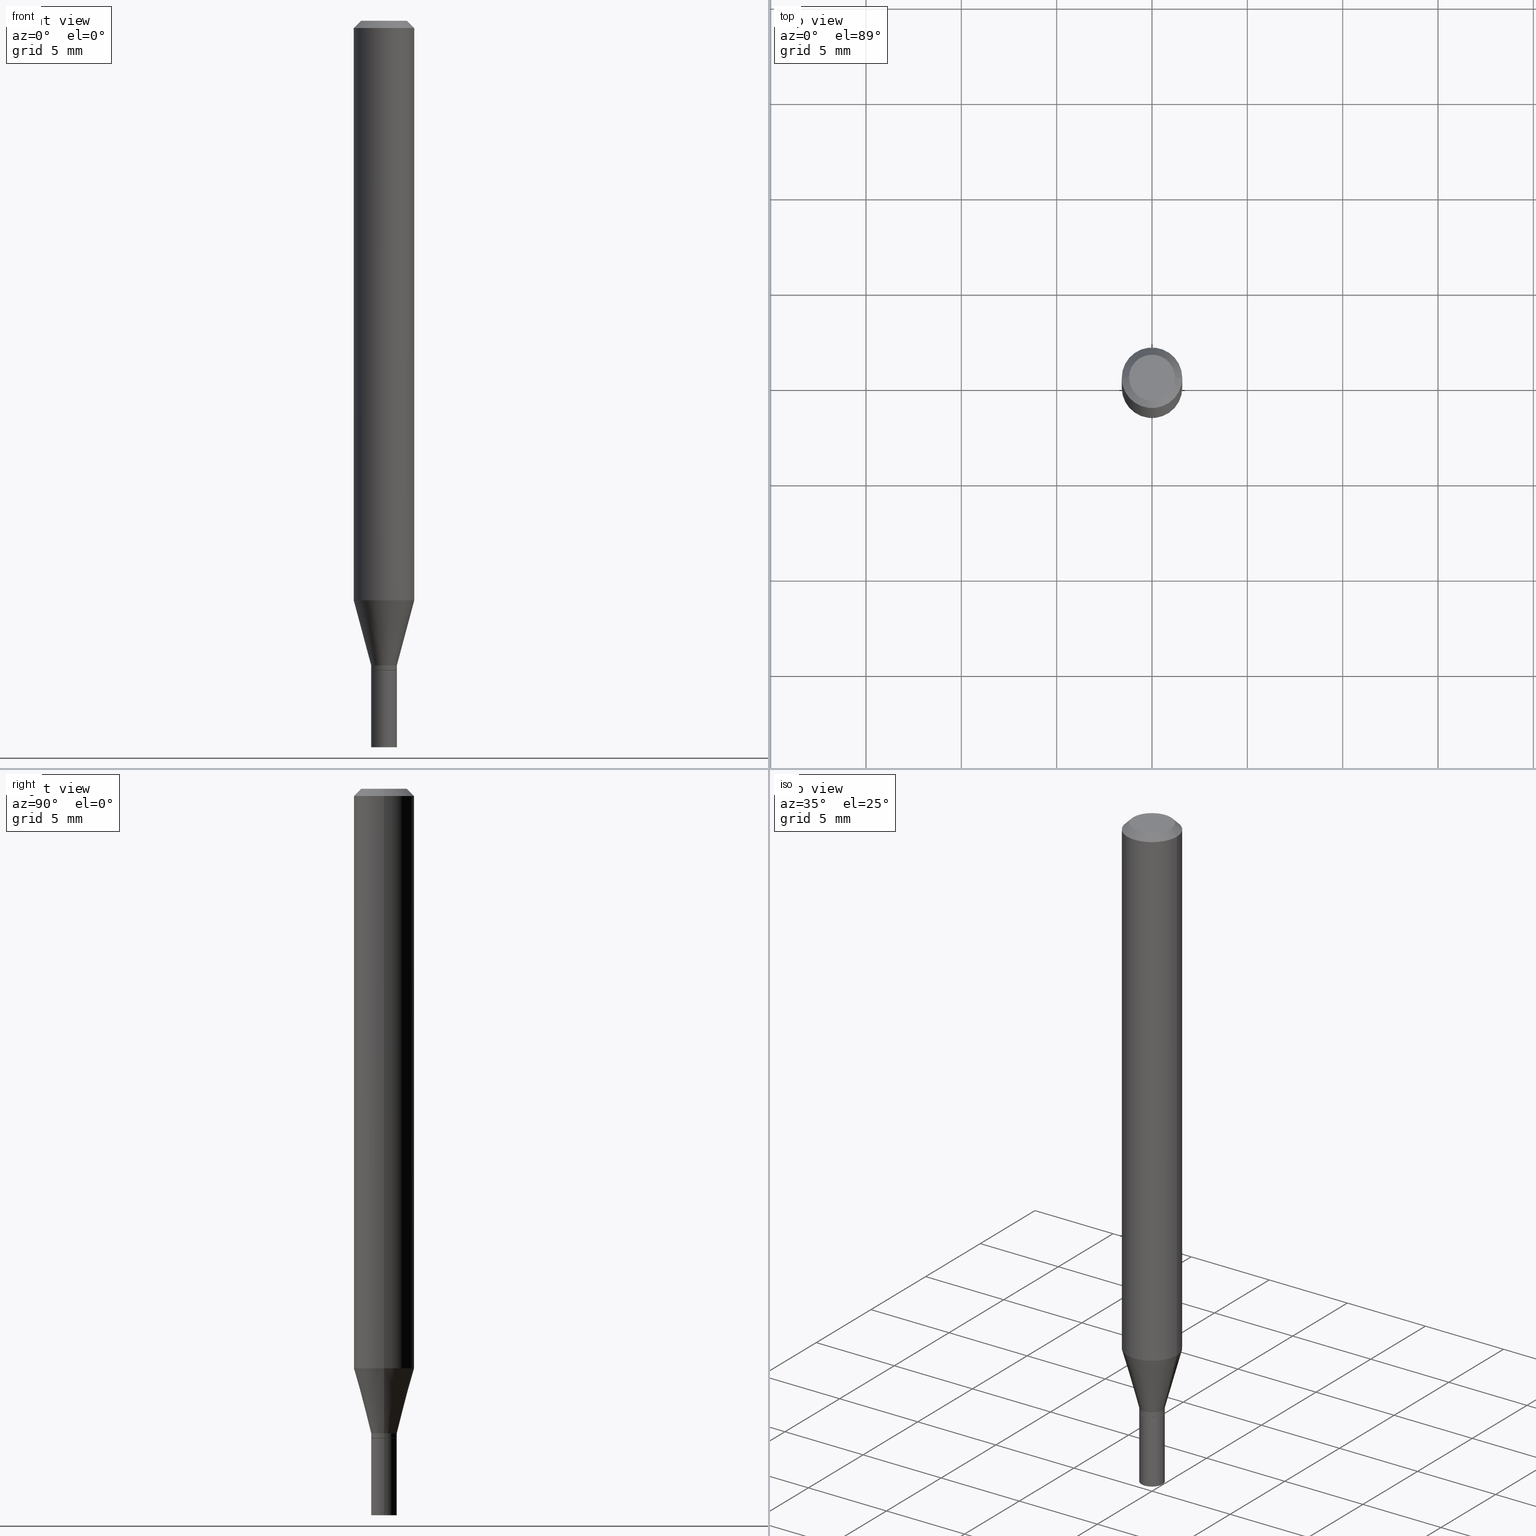
[diagram: canonical four-view strip — front | top / right | iso, engineering-drawing reading convention]
A machine part, canonical four-view strip (front | top / right | iso — engineering-drawing reading convention). The complete STEP part file that produces these views, byte-faithful:
ISO-10303-21;
HEADER;
FILE_DESCRIPTION (( 'STEP AP203' ),
    '1' );
FILE_NAME ('02482.STEP',
    '2024-03-18T20:52:09',
    ( '' ),
    ( '' ),
    'SwSTEP 2.0',
    'SolidWorks 2023',
    '' );
FILE_SCHEMA (( 'CONFIG_CONTROL_DESIGN' ));
ENDSEC;

DATA;
#1 = ORIENTED_EDGE ( 'NONE', *, *, #451, .F. ) ;
#2 = CARTESIAN_POINT ( 'NONE',  ( 0.02649999999999992639, -4.832210172958911994E-15, -1.331000000000000183 ) ) ;
#3 =( CONVERSION_BASED_UNIT ( 'INCH', #327 ) LENGTH_UNIT ( ) NAMED_UNIT ( #218 ) );
#4 = VECTOR ( 'NONE', #315, 39.37007874015748143 ) ;
#5 = FACE_OUTER_BOUND ( 'NONE', #53, .T. ) ;
#6 = SHAPE_DEFINITION_REPRESENTATION ( #211, #369 ) ;
#7 = DIRECTION ( 'NONE',  ( -1.000000000000000000, 6.982962677686265922E-15, -4.876176775795935793E-29 ) ) ;
#8 = CARTESIAN_POINT ( 'NONE',  ( 0.06250000000000000000, -4.614502942346933576E-15, -1.196646170927520458 ) ) ;
#9 = ORIENTED_EDGE ( 'NONE', *, *, #100, .T. ) ;
#10 = CLOSED_SHELL ( 'NONE', ( #397, #145, #131, #177, #400, #244, #336, #197, #83, #294, #113, #66 ) ) ;
#11 = AXIS2_PLACEMENT_3D ( 'NONE', #172, #387, #133 ) ;
#12 = CARTESIAN_POINT ( 'NONE',  ( -0.02599999999999999534, -4.497335364091034108E-15, -1.341000000000000192 ) ) ;
#13 = FACE_OUTER_BOUND ( 'NONE', #398, .T. ) ;
#14 = CARTESIAN_POINT ( 'NONE',  ( 3.668203209277704895E-29, -5.237222008264718177E-15, -1.500000000000000222 ) ) ;
#15 = ADVANCED_FACE ( 'NONE', ( #297 ), #84, .T. ) ;
#16 = ORIENTED_EDGE ( 'NONE', *, *, #114, .F. ) ;
#17 = CARTESIAN_POINT ( 'NONE',  ( 3.279373669094269136E-29, -4.682076475388659531E-15, -1.341000000000000192 ) ) ;
#18 = ORIENTED_EDGE ( 'NONE', *, *, #153, .T. ) ;
#19 = FACE_OUTER_BOUND ( 'NONE', #152, .T. ) ;
#20 = ORIENTED_EDGE ( 'NONE', *, *, #380, .F. ) ;
#21 = CARTESIAN_POINT ( 'NONE',  ( 0.04749999999999999362, -4.035134999187576158E-16, 1.370093274944008177E-16 ) ) ;
#22 = FACE_OUTER_BOUND ( 'NONE', #111, .T. ) ;
#23 = CIRCLE ( 'NONE', #11, 0.02649999999999992639 ) ;
#24 = EDGE_LOOP ( 'NONE', ( #155, #86, #170, #201 ) ) ;
#25 = LINE ( 'NONE', #127, #289 ) ;
#26 = DIRECTION ( 'NONE',  ( -2.445468806185136597E-29, 3.491481338843145583E-15, 1.000000000000000000 ) ) ;
#27 = CARTESIAN_POINT ( 'NONE',  ( -0.02649999999999992639, -4.096423201082640425E-15, -1.331000000000000183 ) ) ;
#28 = ORIENTED_EDGE ( 'NONE', *, *, #393, .T. ) ;
#29 = PERSON_AND_ORGANIZATION ( #412, #365 ) ;
#30 = CARTESIAN_POINT ( 'NONE',  ( 3.254918981032417030E-29, -4.647161662000227094E-15, -1.331000000000000183 ) ) ;
#31 = EDGE_CURVE ( 'NONE', #305, #434, #338, .T. ) ;
#32 = VERTEX_POINT ( 'NONE', #185 ) ;
#33 = DATE_TIME_ROLE ( 'creation_date' ) ;
#34 = CARTESIAN_POINT ( 'NONE',  ( -0.02649999999999999925, -4.771355416850261743E-15, -1.500000000000000222 ) ) ;
#35 = CIRCLE ( 'NONE', #87, 0.02649999999999999925 ) ;
#36 = APPROVAL ( #429, 'UNSPECIFIED' ) ;
#37 = AXIS2_PLACEMENT_3D ( 'NONE', #98, #159, #427 ) ;
#38 = ORIENTED_EDGE ( 'NONE', *, *, #266, .F. ) ;
#39 = PERSON_AND_ORGANIZATION_ROLE ( 'design_supplier' ) ;
#40 = CARTESIAN_POINT ( 'NONE',  ( 0.02649999999999992292, -4.865379245677923717E-15, -1.340500000000000469 ) ) ;
#41 = EDGE_CURVE ( 'NONE', #101, #434, #459, .T. ) ;
#42 = APPROVAL_ROLE ( '' ) ;
#43 = APPROVAL ( #251, 'UNSPECIFIED' ) ;
#44 = CC_DESIGN_APPROVAL ( #319, ( #279 ) ) ;
#45 = VERTEX_POINT ( 'NONE', #119 ) ;
#46 = ORIENTED_EDGE ( 'NONE', *, *, #129, .T. ) ;
#47 = CARTESIAN_POINT ( 'NONE',  ( -0.02649999999999999925, -4.771355416850261743E-15, -1.341000000000000192 ) ) ;
#48 = EDGE_LOOP ( 'NONE', ( #290, #189, #149, #389 ) ) ;
#49 = EDGE_CURVE ( 'NONE', #425, #32, #404, .T. ) ;
#50 = DIRECTION ( 'NONE',  ( 1.000000000000000000, -6.982962677686277755E-15, 0.000000000000000000 ) ) ;
#51 = EDGE_CURVE ( 'NONE', #408, #305, #63, .T. ) ;
#52 = DIRECTION ( 'NONE',  ( -2.445468806185136597E-29, 3.491481338843145583E-15, 1.000000000000000000 ) ) ;
#53 = EDGE_LOOP ( 'NONE', ( #132, #264, #339, #407 ) ) ;
#54 = DIRECTION ( 'NONE',  ( -2.445468806185136597E-29, 3.491481338843145583E-15, 1.000000000000000000 ) ) ;
#55 = EDGE_LOOP ( 'NONE', ( #447, #9, #333, #237 ) ) ;
#56 = VECTOR ( 'NONE', #77, 39.37007874015748143 ) ;
#57 = ORIENTED_EDGE ( 'NONE', *, *, #446, .T. ) ;
#58 = ORIENTED_EDGE ( 'NONE', *, *, #380, .T. ) ;
#59 = CARTESIAN_POINT ( 'NONE',  ( 3.278150934691176334E-29, -4.680330734719238028E-15, -1.340500000000000469 ) ) ;
#60 = DIRECTION ( 'NONE',  ( 1.000000000000000000, -6.982962677686266711E-15, 4.876176775795935793E-29 ) ) ;
#61 = DIRECTION ( 'NONE',  ( -2.445468806185136597E-29, 3.491481338843145583E-15, 1.000000000000000000 ) ) ;
#62 = FACE_OUTER_BOUND ( 'NONE', #48, .T. ) ;
#63 = CIRCLE ( 'NONE', #340, 0.02649999999999999925 ) ;
#64 = LINE ( 'NONE', #241, #4 ) ;
#65 = DIRECTION ( 'NONE',  ( -1.000000000000000000, 6.982962677686266711E-15, 0.000000000000000000 ) ) ;
#66 = ADVANCED_FACE ( 'NONE', ( #13 ), #222, .T. ) ;
#67 = CARTESIAN_POINT ( 'NONE',  ( 2.926360883044138788E-29, -4.178067774991542695E-15, -1.196646170927520458 ) ) ;
#68 = ORIENTED_EDGE ( 'NONE', *, *, #49, .F. ) ;
#69 = VERTEX_POINT ( 'NONE', #436 ) ;
#70 = CARTESIAN_POINT ( 'NONE',  ( 0.000000000000000000, 0.000000000000000000, 0.000000000000000000 ) ) ;
#71 = ORIENTED_EDGE ( 'NONE', *, *, #298, .T. ) ;
#72 = PERSON_AND_ORGANIZATION ( #412, #365 ) ;
#73 = CARTESIAN_POINT ( 'NONE',  ( 3.279373669094269136E-29, -4.682076475388659531E-15, -1.341000000000000192 ) ) ;
#74 = COORDINATED_UNIVERSAL_TIME_OFFSET ( 5, 0, .BEHIND. ) ;
#75 = CARTESIAN_POINT ( 'NONE',  ( 3.254918981032417030E-29, -4.647161662000227094E-15, -1.331000000000000183 ) ) ;
#76 = EDGE_LOOP ( 'NONE', ( #20, #385, #276, #370 ) ) ;
#77 = DIRECTION ( 'NONE',  ( -0.7071067811865656694, 7.493145998870420424E-15, 0.7071067811865294761 ) ) ;
#78 = VECTOR ( 'NONE', #184, 39.37007874015748143 ) ;
#79 = AXIS2_PLACEMENT_3D ( 'NONE', #239, #134, #209 ) ;
#80 = CARTESIAN_POINT ( 'NONE',  ( 0.000000000000000000, 0.000000000000000000, 0.000000000000000000 ) ) ;
#81 = EDGE_CURVE ( 'NONE', #136, #375, #320, .T. ) ;
#82 = APPLICATION_CONTEXT ( 'configuration controlled 3d designs of mechanical parts and assemblies' ) ;
#83 = ADVANCED_FACE ( 'NONE', ( #403 ), #88, .F. ) ;
#84 = CYLINDRICAL_SURFACE ( 'NONE', #288, 0.02649999999999999925 ) ;
#85 =( LENGTH_UNIT ( ) NAMED_UNIT ( * ) SI_UNIT ( $, .METRE. ) );
#86 = ORIENTED_EDGE ( 'NONE', *, *, #451, .T. ) ;
#87 = AXIS2_PLACEMENT_3D ( 'NONE', #14, #368, #268 ) ;
#88 = PLANE ( 'NONE',  #232 ) ;
#89 = AXIS2_PLACEMENT_3D ( 'NONE', #313, #309, #65 ) ;
#90 = AXIS2_PLACEMENT_3D ( 'NONE', #30, #391, #166 ) ;
#91 = CC_DESIGN_DATE_AND_TIME_ASSIGNMENT ( #322, #326, ( #282 ) ) ;
#92 = CARTESIAN_POINT ( 'NONE',  ( 0.02649999999999999925, -4.867124986347346010E-15, -1.341000000000000192 ) ) ;
#93 = ORIENTED_EDGE ( 'NONE', *, *, #417, .T. ) ;
#94 = CARTESIAN_POINT ( 'NONE',  ( 0.02599999999999999534, -4.863633505008502214E-15, -1.341000000000000192 ) ) ;
#95 = LINE ( 'NONE', #342, #348 ) ;
#96 = CIRCLE ( 'NONE', #383, 0.06250000000000000000 ) ;
#97 = DIRECTION ( 'NONE',  ( -2.445468806185136597E-29, 3.491481338843145583E-15, 1.000000000000000000 ) ) ;
#98 = CARTESIAN_POINT ( 'NONE',  ( 3.668203209277705088E-31, -5.237222008264718399E-17, -0.01499999999999999944 ) ) ;
#99 = PRODUCT_RELATED_PRODUCT_CATEGORY ( 'detail', '', ( #141 ) ) ;
#100 = EDGE_CURVE ( 'NONE', #305, #408, #35, .T. ) ;
#101 = VERTEX_POINT ( 'NONE', #92 ) ;
#102 = CLOSED_SHELL ( 'NONE', ( #15, #214, #316, #253 ) ) ;
#103 = DIRECTION ( 'NONE',  ( -2.445468806185136877E-29, 3.491481338843145188E-15, 1.000000000000000000 ) ) ;
#104 = CARTESIAN_POINT ( 'NONE',  ( 0.02649999999999992639, -1.850485109586855413E-16, 1.292186845585919279E-30 ) ) ;
#105 = ORIENTED_EDGE ( 'NONE', *, *, #352, .F. ) ;
#106 = CARTESIAN_POINT ( 'NONE',  ( 1.850485109587188213E-16, 0.02649999999999531550, -1.341000000000000192 ) ) ;
#107 = FACE_OUTER_BOUND ( 'NONE', #206, .T. ) ;
#108 = CALENDAR_DATE ( 2024, 18, 3 ) ;
#109 = CARTESIAN_POINT ( 'NONE',  ( 3.278150934691176334E-29, -4.680330734719238028E-15, -1.340500000000000469 ) ) ;
#110 = AXIS2_PLACEMENT_3D ( 'NONE', #262, #52, #186 ) ;
#111 = EDGE_LOOP ( 'NONE', ( #303, #18, #248, #299 ) ) ;
#112 = DIRECTION ( 'NONE',  ( -2.445468806185136597E-29, 3.491481338843145583E-15, 1.000000000000000000 ) ) ;
#113 = ADVANCED_FACE ( 'NONE', ( #374 ), #308, .T. ) ;
#114 = EDGE_CURVE ( 'NONE', #203, #69, #150, .T. ) ;
#115 =( GEOMETRIC_REPRESENTATION_CONTEXT ( 3 ) GLOBAL_UNCERTAINTY_ASSIGNED_CONTEXT ( ( #277 ) ) GLOBAL_UNIT_ASSIGNED_CONTEXT ( ( #3, #432, #273 ) ) REPRESENTATION_CONTEXT ( 'NONE', 'WORKASPACE' ) );
#116 = DIRECTION ( 'NONE',  ( -2.445468806185136597E-29, 3.491481338843145583E-15, 1.000000000000000000 ) ) ;
#117 = DIRECTION ( 'NONE',  ( -2.445468806185136597E-29, 3.491481338843145583E-15, 1.000000000000000000 ) ) ;
#118 = DIRECTION ( 'NONE',  ( 1.000000000000000000, -6.982962677686266711E-15, 4.876176775795935793E-29 ) ) ;
#119 = CARTESIAN_POINT ( 'NONE',  ( -0.04749999999999999362, 3.578768372314212971E-16, 1.370093274943958627E-16 ) ) ;
#120 = AXIS2_PLACEMENT_3D ( 'NONE', #138, #162, #360 ) ;
#121 = CARTESIAN_POINT ( 'NONE',  ( -0.02649999999999992639, -4.458867837023800771E-15, -1.331000000000000183 ) ) ;
#122 = ORIENTED_EDGE ( 'NONE', *, *, #41, .F. ) ;
#123 = PERSON_AND_ORGANIZATION ( #412, #365 ) ;
#124 = CARTESIAN_POINT ( 'NONE',  ( 0.000000000000000000, 0.000000000000000000, 0.000000000000000000 ) ) ;
#125 = AXIS2_PLACEMENT_3D ( 'NONE', #75, #287, #291 ) ;
#126 = LOCAL_TIME ( 16, 52, 9.000000000000000000, #204 ) ;
#127 = CARTESIAN_POINT ( 'NONE',  ( -0.06250000000000000000, 3.840629472727444916E-16, -0.01499999999999999944 ) ) ;
#128 = CARTESIAN_POINT ( 'NONE',  ( 0.000000000000000000, 0.000000000000000000, 0.000000000000000000 ) ) ;
#129 = EDGE_CURVE ( 'NONE', #396, #425, #146, .T. ) ;
#130 = DIRECTION ( 'NONE',  ( 2.445468806185136597E-29, -3.491481338843145583E-15, -1.000000000000000000 ) ) ;
#131 = ADVANCED_FACE ( 'NONE', ( #62 ), #226, .T. ) ;
#132 = ORIENTED_EDGE ( 'NONE', *, *, #228, .T. ) ;
#133 = DIRECTION ( 'NONE',  ( 1.000000000000000000, -6.982962677686260400E-15, 0.000000000000000000 ) ) ;
#134 = DIRECTION ( 'NONE',  ( -2.445468806185136597E-29, 3.491481338843145583E-15, 1.000000000000000000 ) ) ;
#135 = AXIS2_PLACEMENT_3D ( 'NONE', #419, #304, #154 ) ;
#136 = VERTEX_POINT ( 'NONE', #94 ) ;
#137 = CALENDAR_DATE ( 2024, 18, 3 ) ;
#138 = CARTESIAN_POINT ( 'NONE',  ( 0.000000000000000000, 0.000000000000000000, 0.000000000000000000 ) ) ;
#139 = ORIENTED_EDGE ( 'NONE', *, *, #465, .F. ) ;
#140 = DIRECTION ( 'NONE',  ( -1.000000000000000000, 6.982962677686265922E-15, -4.876176775795935793E-29 ) ) ;
#141 = PRODUCT ( '02482', '02482', '', ( #381 ) ) ;
#142 = CONICAL_SURFACE ( 'NONE', #328, 0.02599999999999999534, 0.7853981633974739252 ) ;
#143 = CONICAL_SURFACE ( 'NONE', #281, 0.06250000000000000000, 0.7853981633974438381 ) ;
#144 = CARTESIAN_POINT ( 'NONE',  ( 0.02649999999999999925, -5.422270519223404655E-15, -1.500000000000000222 ) ) ;
#145 = ADVANCED_FACE ( 'NONE', ( #345 ), #142, .T. ) ;
#146 = LINE ( 'NONE', #292, #208 ) ;
#147 = LINE ( 'NONE', #430, #444 ) ;
#148 = CARTESIAN_POINT ( 'NONE',  ( 0.06250000000000000000, -4.364351673553916694E-16, 3.047610484872459871E-30 ) ) ;
#149 = ORIENTED_EDGE ( 'NONE', *, *, #266, .T. ) ;
#150 = LINE ( 'NONE', #121, #443 ) ;
#151 = LOCAL_TIME ( 16, 52, 9.000000000000000000, #363 ) ;
#152 = EDGE_LOOP ( 'NONE', ( #93, #58, #38, #68 ) ) ;
#153 = EDGE_CURVE ( 'NONE', #192, #203, #95, .T. ) ;
#154 = DIRECTION ( 'NONE',  ( 1.000000000000000000, -6.982962677686265922E-15, 4.876176775795935793E-29 ) ) ;
#155 = ORIENTED_EDGE ( 'NONE', *, *, #81, .T. ) ;
#156 = APPLICATION_PROTOCOL_DEFINITION ( 'international standard', 'config_control_design', 1994, #82 ) ;
#157 = DIRECTION ( 'NONE',  ( 0.000000000000000000, 0.000000000000000000, 1.000000000000000000 ) ) ;
#158 = LOCAL_TIME ( 16, 52, 9.000000000000000000, #386 ) ;
#159 = DIRECTION ( 'NONE',  ( -2.445468806185136597E-29, 3.491481338843145583E-15, 1.000000000000000000 ) ) ;
#160 = FACE_OUTER_BOUND ( 'NONE', #353, .T. ) ;
#161 = APPLICATION_PROTOCOL_DEFINITION ( 'international standard', 'config_control_design', 1994, #356 ) ;
#162 = DIRECTION ( 'NONE',  ( -2.445468806185136597E-29, 3.491481338843145583E-15, 1.000000000000000000 ) ) ;
#163 = CC_DESIGN_PERSON_AND_ORGANIZATION_ASSIGNMENT ( #72, #390, ( #282 ) ) ;
#164 = EDGE_LOOP ( 'NONE', ( #256, #215 ) ) ;
#165 = PERSON_AND_ORGANIZATION_ROLE ( 'creator' ) ;
#166 = DIRECTION ( 'NONE',  ( 1.000000000000000000, -6.982962677686260400E-15, 0.000000000000000000 ) ) ;
#167 = CALENDAR_DATE ( 2024, 18, 3 ) ;
#168 = LINE ( 'NONE', #418, #271 ) ;
#169 = AXIS2_PLACEMENT_3D ( 'NONE', #236, #157, #195 ) ;
#170 = ORIENTED_EDGE ( 'NONE', *, *, #187, .F. ) ;
#171 = CALENDAR_DATE ( 2024, 18, 3 ) ;
#172 = CARTESIAN_POINT ( 'NONE',  ( 3.254918981032417030E-29, -4.647161662000227094E-15, -1.331000000000000183 ) ) ;
#173 = PERSON_AND_ORGANIZATION_ROLE ( 'creator' ) ;
#174 = PERSON_AND_ORGANIZATION ( #412, #365 ) ;
#175 = EDGE_CURVE ( 'NONE', #136, #324, #453, .T. ) ;
#176 = AXIS2_PLACEMENT_3D ( 'NONE', #106, #420, #140 ) ;
#177 = ADVANCED_FACE ( 'NONE', ( #19 ), #240, .T. ) ;
#178 = ORIENTED_EDGE ( 'NONE', *, *, #51, .T. ) ;
#179 = DIRECTION ( 'NONE',  ( 1.000000000000000000, -6.982962677686260400E-15, 0.000000000000000000 ) ) ;
#180 = DIRECTION ( 'NONE',  ( -2.445468806185136597E-29, 3.491481338843145583E-15, 1.000000000000000000 ) ) ;
#181 = DIRECTION ( 'NONE',  ( 1.000000000000000000, -6.982962677686261189E-15, 0.000000000000000000 ) ) ;
#182 = ORIENTED_EDGE ( 'NONE', *, *, #190, .T. ) ;
#183 = CIRCLE ( 'NONE', #301, 0.02649999999999992292 ) ;
#184 = DIRECTION ( 'NONE',  ( -2.445468806185136877E-29, 3.491481338843145188E-15, 1.000000000000000000 ) ) ;
#185 = CARTESIAN_POINT ( 'NONE',  ( 0.06250000000000000000, -4.888073874380388472E-16, -0.01499999999999999944 ) ) ;
#186 = DIRECTION ( 'NONE',  ( 1.000000000000000000, -6.982962677686258822E-15, 0.000000000000000000 ) ) ;
#187 = EDGE_CURVE ( 'NONE', #324, #192, #219, .T. ) ;
#188 = PERSON_AND_ORGANIZATION_ROLE ( 'design_owner' ) ;
#189 = ORIENTED_EDGE ( 'NONE', *, *, #352, .T. ) ;
#190 = EDGE_CURVE ( 'NONE', #45, #245, #25, .T. ) ;
#191 = VECTOR ( 'NONE', #388, 39.37007874015748143 ) ;
#192 = VERTEX_POINT ( 'NONE', #344 ) ;
#193 = VERTEX_POINT ( 'NONE', #21 ) ;
#194 = DIRECTION ( 'NONE',  ( -2.445468806185136597E-29, 3.491481338843145583E-15, 1.000000000000000000 ) ) ;
#195 = DIRECTION ( 'NONE',  ( 1.000000000000000000, 0.000000000000000000, 0.000000000000000000 ) ) ;
#196 = DIRECTION ( 'NONE',  ( 1.000000000000000000, -6.982962677686261189E-15, 0.000000000000000000 ) ) ;
#197 = ADVANCED_FACE ( 'NONE', ( #349 ), #143, .T. ) ;
#198 = CARTESIAN_POINT ( 'NONE',  ( -0.02599999999999999534, -4.494686136916922907E-15, -1.341000000000000192 ) ) ;
#199 = DIRECTION ( 'NONE',  ( -0.7071067811865443531, 2.468850131082223534E-15, -0.7071067811865506814 ) ) ;
#200 = DIRECTION ( 'NONE',  ( 1.000000000000000000, -6.982962677686266711E-15, 4.876176775795935793E-29 ) ) ;
#201 = ORIENTED_EDGE ( 'NONE', *, *, #175, .F. ) ;
#202 = DIRECTION ( 'NONE',  ( 1.000000000000000000, -6.982962677686270655E-15, 0.000000000000000000 ) ) ;
#203 = VERTEX_POINT ( 'NONE', #27 ) ;
#204 = COORDINATED_UNIVERSAL_TIME_OFFSET ( 5, 0, .BEHIND. ) ;
#205 = CYLINDRICAL_SURFACE ( 'NONE', #120, 0.02649999999999999925 ) ;
#206 = EDGE_LOOP ( 'NONE', ( #260, #139 ) ) ;
#207 = PERSON_AND_ORGANIZATION ( #412, #365 ) ;
#208 = VECTOR ( 'NONE', #415, 39.37007874015748854 ) ;
#209 = DIRECTION ( 'NONE',  ( 1.000000000000000000, -6.982962677686267499E-15, 4.852736867747366768E-29 ) ) ;
#210 = CIRCLE ( 'NONE', #452, 0.04749999999999999362 ) ;
#211 = PRODUCT_DEFINITION_SHAPE ( 'NONE', 'NONE',  #279 ) ;
#212 = CALENDAR_DATE ( 2024, 18, 3 ) ;
#213 = DIRECTION ( 'NONE',  ( -2.445468806185136597E-29, 3.491481338843145583E-15, 1.000000000000000000 ) ) ;
#214 = ADVANCED_FACE ( 'NONE', ( #160 ), #275, .F. ) ;
#215 = ORIENTED_EDGE ( 'NONE', *, *, #223, .T. ) ;
#216 = EDGE_CURVE ( 'NONE', #324, #396, #280, .T. ) ;
#217 = DIRECTION ( 'NONE',  ( 1.000000000000000000, -6.982962677686267499E-15, 4.852736867747366768E-29 ) ) ;
#218 = DIMENSIONAL_EXPONENTS ( 1.000000000000000000, 0.000000000000000000, 0.000000000000000000, 0.000000000000000000, 0.000000000000000000, 0.000000000000000000, 0.000000000000000000 ) ;
#219 = CIRCLE ( 'NONE', #461, 0.02649999999999992292 ) ;
#220 = CC_DESIGN_APPROVAL ( #43, ( #282 ) ) ;
#221 = DIRECTION ( 'NONE',  ( -0.2588190451025211836, 5.211531920934547886E-15, 0.9659258262890679791 ) ) ;
#222 = CYLINDRICAL_SURFACE ( 'NONE', #252, 0.02649999999999992639 ) ;
#223 = EDGE_CURVE ( 'NONE', #434, #101, #259, .T. ) ;
#224 = DIRECTION ( 'NONE',  ( -2.445468806185136597E-29, 3.491481338843145583E-15, 1.000000000000000000 ) ) ;
#225 = DATE_AND_TIME ( #212, #311 ) ;
#226 = CONICAL_SURFACE ( 'NONE', #89, 0.06250000000000000000, 0.7853981633974438381 ) ;
#227 = CIRCLE ( 'NONE', #379, 0.02599999999999999534 ) ;
#228 = EDGE_CURVE ( 'NONE', #396, #203, #23, .T. ) ;
#229 = DIRECTION ( 'NONE',  ( 1.000000000000000000, -6.982962677686258822E-15, 0.000000000000000000 ) ) ;
#230 = ORIENTED_EDGE ( 'NONE', *, *, #153, .F. ) ;
#231 = CC_DESIGN_DATE_AND_TIME_ASSIGNMENT ( #249, #33, ( #279 ) ) ;
#232 = AXIS2_PLACEMENT_3D ( 'NONE', #332, #337, #7 ) ;
#233 = DIRECTION ( 'NONE',  ( 0.7071067811865656694, -2.468850131082446387E-15, 0.7071067811865294761 ) ) ;
#234 = AXIS2_PLACEMENT_3D ( 'NONE', #312, #323, #466 ) ;
#235 = APPROVAL_PERSON_ORGANIZATION ( #207, #43, #395 ) ;
#236 = CARTESIAN_POINT ( 'NONE',  ( 0.000000000000000000, 0.000000000000000000, 0.000000000000000000 ) ) ;
#237 = ORIENTED_EDGE ( 'NONE', *, *, #223, .F. ) ;
#238 = DIRECTION ( 'NONE',  ( 1.000000000000000000, -6.982962677686258822E-15, 0.000000000000000000 ) ) ;
#239 = CARTESIAN_POINT ( 'NONE',  ( -3.350520365439544480E-45, 4.783655101941405986E-31, 1.370093274943982539E-16 ) ) ;
#240 = CYLINDRICAL_SURFACE ( 'NONE', #321, 0.06250000000000000000 ) ;
#241 = CARTESIAN_POINT ( 'NONE',  ( 0.06250000000000000000, -4.811533449433679005E-16, -0.01499999999999999944 ) ) ;
#242 = CARTESIAN_POINT ( 'NONE',  ( 0.02599999999999999534, -4.863633505008502214E-15, -1.341000000000000192 ) ) ;
#243 = DIRECTION ( 'NONE',  ( 1.000000000000000000, -6.982962677686265922E-15, 4.876176775795935232E-29 ) ) ;
#244 = ADVANCED_FACE ( 'NONE', ( #278 ), #405, .T. ) ;
#245 = VERTEX_POINT ( 'NONE', #351 ) ;
#246 = SECURITY_CLASSIFICATION_LEVEL ( 'unclassified' ) ;
#247 = DIRECTION ( 'NONE',  ( -2.445468806185136597E-29, 3.491481338843145583E-15, 1.000000000000000000 ) ) ;
#248 = ORIENTED_EDGE ( 'NONE', *, *, #228, .F. ) ;
#249 = DATE_AND_TIME ( #167, #151 ) ;
#250 = FACE_OUTER_BOUND ( 'NONE', #55, .T. ) ;
#251 = APPROVAL_STATUS ( 'not_yet_approved' ) ;
#252 = AXIS2_PLACEMENT_3D ( 'NONE', #80, #180, #335 ) ;
#253 = ADVANCED_FACE ( 'NONE', ( #283 ), #318, .F. ) ;
#254 = CARTESIAN_POINT ( 'NONE',  ( -3.350520365439544480E-45, 4.783655101941405986E-31, 1.370093274943982539E-16 ) ) ;
#255 = CC_DESIGN_PERSON_AND_ORGANIZATION_ASSIGNMENT ( #174, #173, ( #279 ) ) ;
#256 = ORIENTED_EDGE ( 'NONE', *, *, #41, .T. ) ;
#257 = DIRECTION ( 'NONE',  ( -2.445468806185136877E-29, 3.491481338843145188E-15, 1.000000000000000000 ) ) ;
#258 = AXIS2_PLACEMENT_3D ( 'NONE', #441, #302, #50 ) ;
#259 = CIRCLE ( 'NONE', #359, 0.02649999999999999925 ) ;
#260 = ORIENTED_EDGE ( 'NONE', *, *, #81, .F. ) ;
#261 = DIRECTION ( 'NONE',  ( 1.000000000000000000, -6.982962677686258822E-15, 0.000000000000000000 ) ) ;
#262 = CARTESIAN_POINT ( 'NONE',  ( 3.279373669094269136E-29, -4.682076475388659531E-15, -1.341000000000000192 ) ) ;
#263 = MANIFOLD_SOLID_BREP ( 'Body-Move/Copy2[1]', #102 ) ;
#264 = ORIENTED_EDGE ( 'NONE', *, *, #114, .T. ) ;
#265 = MANIFOLD_SOLID_BREP ( 'Body-Move/Copy2[2]', #10 ) ;
#266 = EDGE_CURVE ( 'NONE', #32, #245, #334, .T. ) ;
#267 = CIRCLE ( 'NONE', #341, 0.06250000000000000000 ) ;
#268 = DIRECTION ( 'NONE',  ( 1.000000000000000000, -6.982962677686277755E-15, 0.000000000000000000 ) ) ;
#269 = EDGE_CURVE ( 'NONE', #69, #425, #267, .T. ) ;
#270 = ORIENTED_EDGE ( 'NONE', *, *, #465, .T. ) ;
#271 = VECTOR ( 'NONE', #103, 39.37007874015748143 ) ;
#272 = APPROVAL_PERSON_ORGANIZATION ( #426, #36, #42 ) ;
#273 =( NAMED_UNIT ( * ) SI_UNIT ( $, .STERADIAN. ) SOLID_ANGLE_UNIT ( ) );
#274 = DIRECTION ( 'NONE',  ( -2.445468806185136597E-29, 3.491481338843145583E-15, 1.000000000000000000 ) ) ;
#275 = PLANE ( 'NONE',  #135 ) ;
#276 = ORIENTED_EDGE ( 'NONE', *, *, #49, .T. ) ;
#277 = UNCERTAINTY_MEASURE_WITH_UNIT (LENGTH_MEASURE( 1.000000000000000082E-05 ), #3, 'distance_accuracy_value', 'NONE');
#278 = FACE_OUTER_BOUND ( 'NONE', #450, .T. ) ;
#279 = PRODUCT_DEFINITION ( 'UNKNOWN', '', #421, #423 ) ;
#280 = LINE ( 'NONE', #104, #191 ) ;
#281 = AXIS2_PLACEMENT_3D ( 'NONE', #416, #130, #307 ) ;
#282 = SECURITY_CLASSIFICATION ( '', '', #246 ) ;
#283 = FACE_OUTER_BOUND ( 'NONE', #164, .T. ) ;
#284 = ORIENTED_EDGE ( 'NONE', *, *, #269, .F. ) ;
#285 = APPROVAL_DATE_TIME ( #354, #36 ) ;
#286 = DATE_AND_TIME ( #137, #158 ) ;
#287 = DIRECTION ( 'NONE',  ( -2.445468806185136597E-29, 3.491481338843145583E-15, 1.000000000000000000 ) ) ;
#288 = AXIS2_PLACEMENT_3D ( 'NONE', #442, #224, #118 ) ;
#289 = VECTOR ( 'NONE', #199, 39.37007874015748143 ) ;
#290 = ORIENTED_EDGE ( 'NONE', *, *, #298, .F. ) ;
#291 = DIRECTION ( 'NONE',  ( 1.000000000000000000, -6.982962677686260400E-15, 0.000000000000000000 ) ) ;
#292 = CARTESIAN_POINT ( 'NONE',  ( 0.02649999999999992639, -4.832210172958911994E-15, -1.331000000000000183 ) ) ;
#293 = LINE ( 'NONE', #12, #56 ) ;
#294 = ADVANCED_FACE ( 'NONE', ( #107 ), #458, .F. ) ;
#295 = AXIS2_PLACEMENT_3D ( 'NONE', #73, #346, #355 ) ;
#296 = DIRECTION ( 'NONE',  ( -2.445468806185136877E-29, 3.491481338843145188E-15, 1.000000000000000000 ) ) ;
#297 = FACE_OUTER_BOUND ( 'NONE', #330, .T. ) ;
#298 = EDGE_CURVE ( 'NONE', #193, #45, #310, .T. ) ;
#299 = ORIENTED_EDGE ( 'NONE', *, *, #216, .F. ) ;
#300 = CC_DESIGN_PERSON_AND_ORGANIZATION_ASSIGNMENT ( #29, #165, ( #421 ) ) ;
#301 = AXIS2_PLACEMENT_3D ( 'NONE', #109, #399, #181 ) ;
#302 = DIRECTION ( 'NONE',  ( -2.445468806185136597E-29, 3.491481338843145583E-15, 1.000000000000000000 ) ) ;
#303 = ORIENTED_EDGE ( 'NONE', *, *, #187, .T. ) ;
#304 = DIRECTION ( 'NONE',  ( -2.438088387897960049E-29, 3.491481338843145188E-15, 1.000000000000000000 ) ) ;
#305 = VERTEX_POINT ( 'NONE', #34 ) ;
#306 = EDGE_LOOP ( 'NONE', ( #1, #270, #401, #409 ) ) ;
#307 = DIRECTION ( 'NONE',  ( -1.000000000000000000, 6.982962677686266711E-15, 0.000000000000000000 ) ) ;
#308 = CONICAL_SURFACE ( 'NONE', #110, 0.02599999999999999534, 0.7853981633974739252 ) ;
#309 = DIRECTION ( 'NONE',  ( 2.445468806185136597E-29, -3.491481338843145583E-15, -1.000000000000000000 ) ) ;
#310 = CIRCLE ( 'NONE', #79, 0.04749999999999999362 ) ;
#311 = LOCAL_TIME ( 16, 52, 9.000000000000000000, #74 ) ;
#312 = CARTESIAN_POINT ( 'NONE',  ( 3.668203209277705088E-31, -5.237222008264718399E-17, -0.01499999999999999944 ) ) ;
#313 = CARTESIAN_POINT ( 'NONE',  ( 3.668203209277705088E-31, -5.237222008264718399E-17, -0.01499999999999999944 ) ) ;
#314 = PERSON_AND_ORGANIZATION ( #412, #365 ) ;
#315 = DIRECTION ( 'NONE',  ( 0.7071067811865443531, -7.319954787623245001E-15, -0.7071067811865506814 ) ) ;
#316 = ADVANCED_FACE ( 'NONE', ( #250 ), #205, .T. ) ;
#317 = PERSON_AND_ORGANIZATION ( #412, #365 ) ;
#318 = PLANE ( 'NONE',  #176 ) ;
#319 = APPROVAL ( #455, 'UNSPECIFIED' ) ;
#320 = CIRCLE ( 'NONE', #378, 0.02599999999999999534 ) ;
#321 = AXIS2_PLACEMENT_3D ( 'NONE', #124, #97, #60 ) ;
#322 = DATE_AND_TIME ( #171, #384 ) ;
#323 = DIRECTION ( 'NONE',  ( -2.445468806185136597E-29, 3.491481338843145583E-15, 1.000000000000000000 ) ) ;
#324 = VERTEX_POINT ( 'NONE', #40 ) ;
#325 = CARTESIAN_POINT ( 'NONE',  ( 3.279373669094269136E-29, -4.682076475388659531E-15, -1.341000000000000192 ) ) ;
#326 = DATE_TIME_ROLE ( 'classification_date' ) ;
#327 = LENGTH_MEASURE_WITH_UNIT ( LENGTH_MEASURE( 0.02539999999999999897 ), #85 );
#328 = AXIS2_PLACEMENT_3D ( 'NONE', #376, #54, #238 ) ;
#329 = APPROVAL_DATE_TIME ( #286, #319 ) ;
#330 = EDGE_LOOP ( 'NONE', ( #178, #357, #122, #392 ) ) ;
#331 = DIRECTION ( 'NONE',  ( 1.000000000000000000, -6.982962677686270655E-15, 0.000000000000000000 ) ) ;
#332 = CARTESIAN_POINT ( 'NONE',  ( 3.316907271900976096E-16, 0.04749999999999999362, -9.734069984785028182E-17 ) ) ;
#333 = ORIENTED_EDGE ( 'NONE', *, *, #433, .T. ) ;
#334 = CIRCLE ( 'NONE', #37, 0.06250000000000000000 ) ;
#335 = DIRECTION ( 'NONE',  ( 1.000000000000000000, -6.982962677686265922E-15, 4.876176775795935232E-29 ) ) ;
#336 = ADVANCED_FACE ( 'NONE', ( #382 ), #424, .T. ) ;
#337 = DIRECTION ( 'NONE',  ( 2.438088387897960049E-29, -3.491481338843145188E-15, -1.000000000000000000 ) ) ;
#338 = LINE ( 'NONE', #373, #78 ) ;
#339 = ORIENTED_EDGE ( 'NONE', *, *, #417, .F. ) ;
#340 = AXIS2_PLACEMENT_3D ( 'NONE', #440, #448, #367 ) ;
#341 = AXIS2_PLACEMENT_3D ( 'NONE', #67, #26, #202 ) ;
#342 = CARTESIAN_POINT ( 'NONE',  ( -0.02649999999999992639, 1.882938249764260262E-16, -1.303517798917546247E-30 ) ) ;
#343 = EDGE_LOOP ( 'NONE', ( #428, #71 ) ) ;
#344 = CARTESIAN_POINT ( 'NONE',  ( -0.02649999999999992292, -4.492036909742812495E-15, -1.340500000000000469 ) ) ;
#345 = FACE_OUTER_BOUND ( 'NONE', #24, .T. ) ;
#346 = DIRECTION ( 'NONE',  ( -2.438088387897960049E-29, 3.491481338843145188E-15, 1.000000000000000000 ) ) ;
#347 = ORIENTED_EDGE ( 'NONE', *, *, #51, .F. ) ;
#348 = VECTOR ( 'NONE', #457, 39.37007874015748143 ) ;
#349 = FACE_OUTER_BOUND ( 'NONE', #463, .T. ) ;
#350 = CIRCLE ( 'NONE', #234, 0.06250000000000000000 ) ;
#351 = CARTESIAN_POINT ( 'NONE',  ( -0.06250000000000000000, -1.671130787687032468E-15, -0.01499999999999999944 ) ) ;
#352 = EDGE_CURVE ( 'NONE', #193, #32, #64, .T. ) ;
#353 = EDGE_LOOP ( 'NONE', ( #347, #422 ) ) ;
#354 = DATE_AND_TIME ( #108, #126 ) ;
#355 = DIRECTION ( 'NONE',  ( 1.000000000000000000, -6.982962677686265922E-15, 4.876176775795935793E-29 ) ) ;
#356 = APPLICATION_CONTEXT ( 'configuration controlled 3d designs of mechanical parts and assemblies' ) ;
#357 = ORIENTED_EDGE ( 'NONE', *, *, #31, .T. ) ;
#358 = COORDINATED_UNIVERSAL_TIME_OFFSET ( 5, 0, .BEHIND. ) ;
#359 = AXIS2_PLACEMENT_3D ( 'NONE', #325, #61, #456 ) ;
#360 = DIRECTION ( 'NONE',  ( 1.000000000000000000, -6.982962677686266711E-15, 4.876176775795935793E-29 ) ) ;
#361 = DIRECTION ( 'NONE',  ( -2.445468806185136597E-29, 3.491481338843145583E-15, 1.000000000000000000 ) ) ;
#362 = ORIENTED_EDGE ( 'NONE', *, *, #410, .T. ) ;
#363 = COORDINATED_UNIVERSAL_TIME_OFFSET ( 5, 0, .BEHIND. ) ;
#364 = CC_DESIGN_PERSON_AND_ORGANIZATION_ASSIGNMENT ( #123, #188, ( #141 ) ) ;
#365 = ORGANIZATION ( 'UNSPECIFIED', 'UNSPECIFIED', '' ) ;
#366 = CARTESIAN_POINT ( 'NONE',  ( 3.279373669094269136E-29, -4.682076475388659531E-15, -1.341000000000000192 ) ) ;
#367 = DIRECTION ( 'NONE',  ( 1.000000000000000000, -6.982962677686277755E-15, 0.000000000000000000 ) ) ;
#368 = DIRECTION ( 'NONE',  ( -2.445468806185136597E-29, 3.491481338843145583E-15, 1.000000000000000000 ) ) ;
#369 = ADVANCED_BREP_SHAPE_REPRESENTATION ( '02482', ( #263, #265, #169 ), #115 ) ;
#370 = ORIENTED_EDGE ( 'NONE', *, *, #393, .F. ) ;
#371 = APPROVAL_DATE_TIME ( #225, #43 ) ;
#372 = APPROVAL_PERSON_ORGANIZATION ( #314, #319, #464 ) ;
#373 = CARTESIAN_POINT ( 'NONE',  ( -0.02649999999999999925, 1.882938249764265439E-16, -1.303517798917549926E-30 ) ) ;
#374 = FACE_OUTER_BOUND ( 'NONE', #306, .T. ) ;
#375 = VERTEX_POINT ( 'NONE', #198 ) ;
#376 = CARTESIAN_POINT ( 'NONE',  ( 3.279373669094269136E-29, -4.682076475388659531E-15, -1.341000000000000192 ) ) ;
#377 = ORIENTED_EDGE ( 'NONE', *, *, #216, .T. ) ;
#378 = AXIS2_PLACEMENT_3D ( 'NONE', #17, #117, #229 ) ;
#379 = AXIS2_PLACEMENT_3D ( 'NONE', #366, #116, #261 ) ;
#380 = EDGE_CURVE ( 'NONE', #69, #245, #168, .T. ) ;
#381 = MECHANICAL_CONTEXT ( 'NONE', #82, 'mechanical' ) ;
#382 = FACE_OUTER_BOUND ( 'NONE', #76, .T. ) ;
#383 = AXIS2_PLACEMENT_3D ( 'NONE', #439, #112, #331 ) ;
#384 = LOCAL_TIME ( 16, 52, 9.000000000000000000, #358 ) ;
#385 = ORIENTED_EDGE ( 'NONE', *, *, #269, .T. ) ;
#386 = COORDINATED_UNIVERSAL_TIME_OFFSET ( 5, 0, .BEHIND. ) ;
#387 = DIRECTION ( 'NONE',  ( -2.445468806185136597E-29, 3.491481338843145583E-15, 1.000000000000000000 ) ) ;
#388 = DIRECTION ( 'NONE',  ( -2.445468806185136877E-29, 3.491481338843145188E-15, 1.000000000000000000 ) ) ;
#389 = ORIENTED_EDGE ( 'NONE', *, *, #190, .F. ) ;
#390 = PERSON_AND_ORGANIZATION_ROLE ( 'classification_officer' ) ;
#391 = DIRECTION ( 'NONE',  ( -2.445468806185136597E-29, 3.491481338843145583E-15, 1.000000000000000000 ) ) ;
#392 = ORIENTED_EDGE ( 'NONE', *, *, #433, .F. ) ;
#393 = EDGE_CURVE ( 'NONE', #245, #32, #350, .T. ) ;
#394 = CIRCLE ( 'NONE', #431, 0.02649999999999992639 ) ;
#395 = APPROVAL_ROLE ( '' ) ;
#396 = VERTEX_POINT ( 'NONE', #2 ) ;
#397 = ADVANCED_FACE ( 'NONE', ( #22 ), #454, .T. ) ;
#398 = EDGE_LOOP ( 'NONE', ( #230, #57, #377, #411 ) ) ;
#399 = DIRECTION ( 'NONE',  ( -2.445468806185136597E-29, 3.491481338843145583E-15, 1.000000000000000000 ) ) ;
#400 = ADVANCED_FACE ( 'NONE', ( #5 ), #414, .T. ) ;
#401 = ORIENTED_EDGE ( 'NONE', *, *, #175, .T. ) ;
#402 = VECTOR ( 'NONE', #233, 39.37007874015748143 ) ;
#403 = FACE_OUTER_BOUND ( 'NONE', #343, .T. ) ;
#404 = LINE ( 'NONE', #148, #437 ) ;
#405 = CONICAL_SURFACE ( 'NONE', #90, 0.02649999999999992639, 0.2617993877991499074 ) ;
#406 = AXIS2_PLACEMENT_3D ( 'NONE', #128, #274, #243 ) ;
#407 = ORIENTED_EDGE ( 'NONE', *, *, #129, .F. ) ;
#408 = VERTEX_POINT ( 'NONE', #144 ) ;
#409 = ORIENTED_EDGE ( 'NONE', *, *, #446, .F. ) ;
#410 = EDGE_CURVE ( 'NONE', #203, #396, #394, .T. ) ;
#411 = ORIENTED_EDGE ( 'NONE', *, *, #410, .F. ) ;
#412 = PERSON ( 'UNSPECIFIED', 'UNSPECIFIED', 'UNSPECIFIED', ('UNSPECIFIED'), ('UNSPECIFIED'), ('UNSPECIFIED') ) ;
#413 = CC_DESIGN_PERSON_AND_ORGANIZATION_ASSIGNMENT ( #317, #39, ( #421 ) ) ;
#414 = CONICAL_SURFACE ( 'NONE', #125, 0.02649999999999992639, 0.2617993877991499074 ) ;
#415 = DIRECTION ( 'NONE',  ( 0.2588190451025211836, 1.565188264969622559E-15, 0.9659258262890679791 ) ) ;
#416 = CARTESIAN_POINT ( 'NONE',  ( 3.668203209277705088E-31, -5.237222008264718399E-17, -0.01499999999999999944 ) ) ;
#417 = EDGE_CURVE ( 'NONE', #425, #69, #96, .T. ) ;
#418 = CARTESIAN_POINT ( 'NONE',  ( -0.06250000000000000000, 4.440892098500626162E-16, -3.074334431409316114E-30 ) ) ;
#419 = CARTESIAN_POINT ( 'NONE',  ( 3.576687321579069994E-29, -5.368277968210015545E-15, -1.500000000000000222 ) ) ;
#420 = DIRECTION ( 'NONE',  ( 2.438088387897960049E-29, -3.491481338843145188E-15, -1.000000000000000000 ) ) ;
#421 = PRODUCT_DEFINITION_FORMATION_WITH_SPECIFIED_SOURCE ( 'ANY', '', #141, .NOT_KNOWN. ) ;
#422 = ORIENTED_EDGE ( 'NONE', *, *, #100, .F. ) ;
#423 = DESIGN_CONTEXT ( 'detailed design', #356, 'design' ) ;
#424 = CYLINDRICAL_SURFACE ( 'NONE', #438, 0.06250000000000000000 ) ;
#425 = VERTEX_POINT ( 'NONE', #8 ) ;
#426 = PERSON_AND_ORGANIZATION ( #412, #365 ) ;
#427 = DIRECTION ( 'NONE',  ( 1.000000000000000000, -6.982962677686266711E-15, 0.000000000000000000 ) ) ;
#428 = ORIENTED_EDGE ( 'NONE', *, *, #460, .T. ) ;
#429 = APPROVAL_STATUS ( 'not_yet_approved' ) ;
#430 = CARTESIAN_POINT ( 'NONE',  ( 0.02649999999999999925, -1.850485109586860590E-16, 1.292186845585922957E-30 ) ) ;
#431 = AXIS2_PLACEMENT_3D ( 'NONE', #435, #213, #179 ) ;
#432 =( NAMED_UNIT ( * ) PLANE_ANGLE_UNIT ( ) SI_UNIT ( $, .RADIAN. ) );
#433 = EDGE_CURVE ( 'NONE', #408, #101, #147, .T. ) ;
#434 = VERTEX_POINT ( 'NONE', #47 ) ;
#435 = CARTESIAN_POINT ( 'NONE',  ( 3.254918981032417030E-29, -4.647161662000227094E-15, -1.331000000000000183 ) ) ;
#436 = CARTESIAN_POINT ( 'NONE',  ( -0.06250000000000000000, -3.733978565141479290E-15, -1.196646170927520458 ) ) ;
#437 = VECTOR ( 'NONE', #296, 39.37007874015748143 ) ;
#438 = AXIS2_PLACEMENT_3D ( 'NONE', #70, #247, #200 ) ;
#439 = CARTESIAN_POINT ( 'NONE',  ( 2.926360883044138788E-29, -4.178067774991542695E-15, -1.196646170927520458 ) ) ;
#440 = CARTESIAN_POINT ( 'NONE',  ( 3.668203209277704895E-29, -5.237222008264718177E-15, -1.500000000000000222 ) ) ;
#441 = CARTESIAN_POINT ( 'NONE',  ( 3.279373669094269136E-29, -4.682076475388659531E-15, -1.341000000000000192 ) ) ;
#442 = CARTESIAN_POINT ( 'NONE',  ( 0.000000000000000000, 0.000000000000000000, 0.000000000000000000 ) ) ;
#443 = VECTOR ( 'NONE', #221, 39.37007874015748854 ) ;
#444 = VECTOR ( 'NONE', #257, 39.37007874015748143 ) ;
#445 = CC_DESIGN_APPROVAL ( #36, ( #421 ) ) ;
#446 = EDGE_CURVE ( 'NONE', #192, #324, #183, .T. ) ;
#447 = ORIENTED_EDGE ( 'NONE', *, *, #31, .F. ) ;
#448 = DIRECTION ( 'NONE',  ( -2.445468806185136597E-29, 3.491481338843145583E-15, 1.000000000000000000 ) ) ;
#449 = ORIENTED_EDGE ( 'NONE', *, *, #460, .F. ) ;
#450 = EDGE_LOOP ( 'NONE', ( #16, #362, #46, #284 ) ) ;
#451 = EDGE_CURVE ( 'NONE', #375, #192, #293, .T. ) ;
#452 = AXIS2_PLACEMENT_3D ( 'NONE', #254, #361, #217 ) ;
#453 = LINE ( 'NONE', #242, #402 ) ;
#454 = CYLINDRICAL_SURFACE ( 'NONE', #406, 0.02649999999999992639 ) ;
#455 = APPROVAL_STATUS ( 'not_yet_approved' ) ;
#456 = DIRECTION ( 'NONE',  ( 1.000000000000000000, -6.982962677686277755E-15, 0.000000000000000000 ) ) ;
#457 = DIRECTION ( 'NONE',  ( -2.445468806185136877E-29, 3.491481338843145188E-15, 1.000000000000000000 ) ) ;
#458 = PLANE ( 'NONE',  #295 ) ;
#459 = CIRCLE ( 'NONE', #258, 0.02649999999999999925 ) ;
#460 = EDGE_CURVE ( 'NONE', #45, #193, #210, .T. ) ;
#461 = AXIS2_PLACEMENT_3D ( 'NONE', #59, #194, #196 ) ;
#462 = CC_DESIGN_SECURITY_CLASSIFICATION ( #282, ( #421 ) ) ;
#463 = EDGE_LOOP ( 'NONE', ( #105, #449, #182, #28 ) ) ;
#464 = APPROVAL_ROLE ( '' ) ;
#465 = EDGE_CURVE ( 'NONE', #375, #136, #227, .T. ) ;
#466 = DIRECTION ( 'NONE',  ( 1.000000000000000000, -6.982962677686266711E-15, 0.000000000000000000 ) ) ;
ENDSEC;
END-ISO-10303-21;
